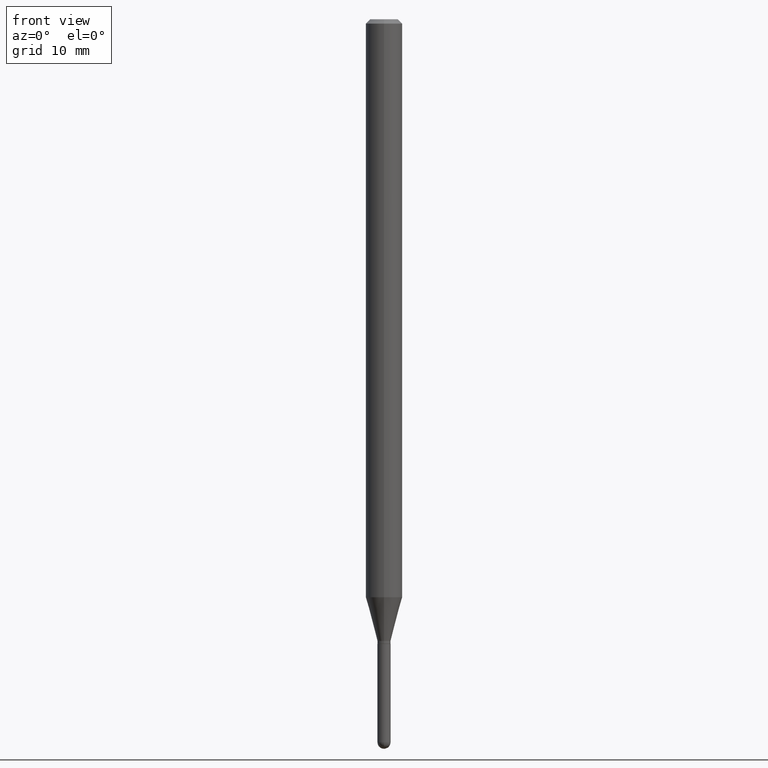
[diagram: clean part render]
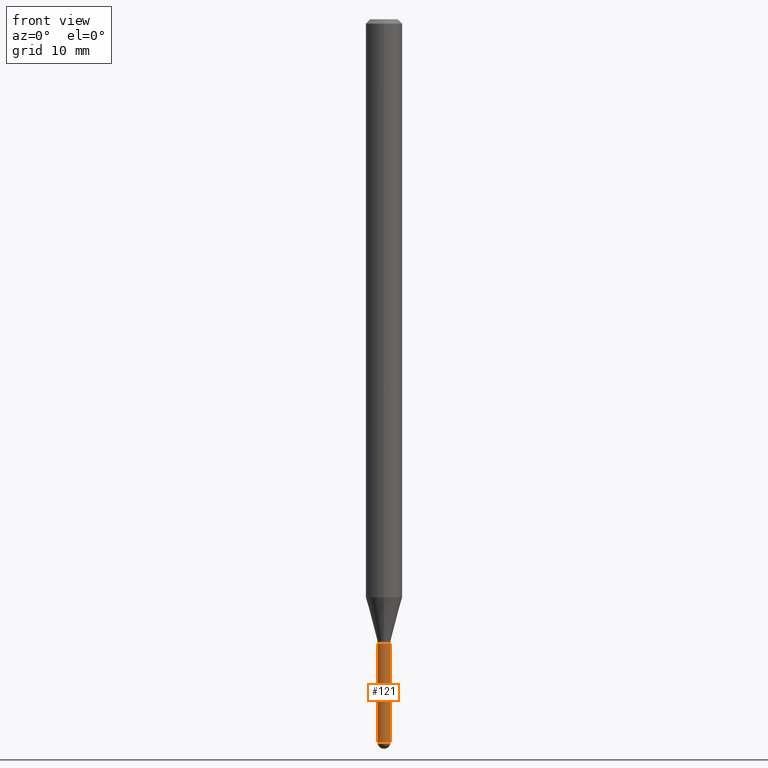
[diagram: same view with one face highlighted and labeled with its STEP entity id]
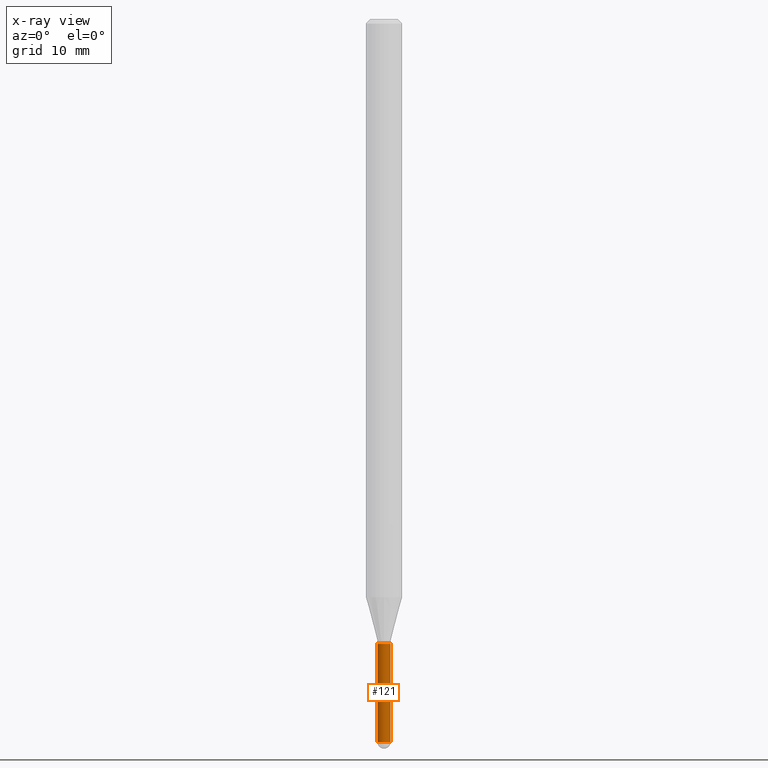
[diagram: x-ray of the same camera — body ghosted, the highlighted face saturated]
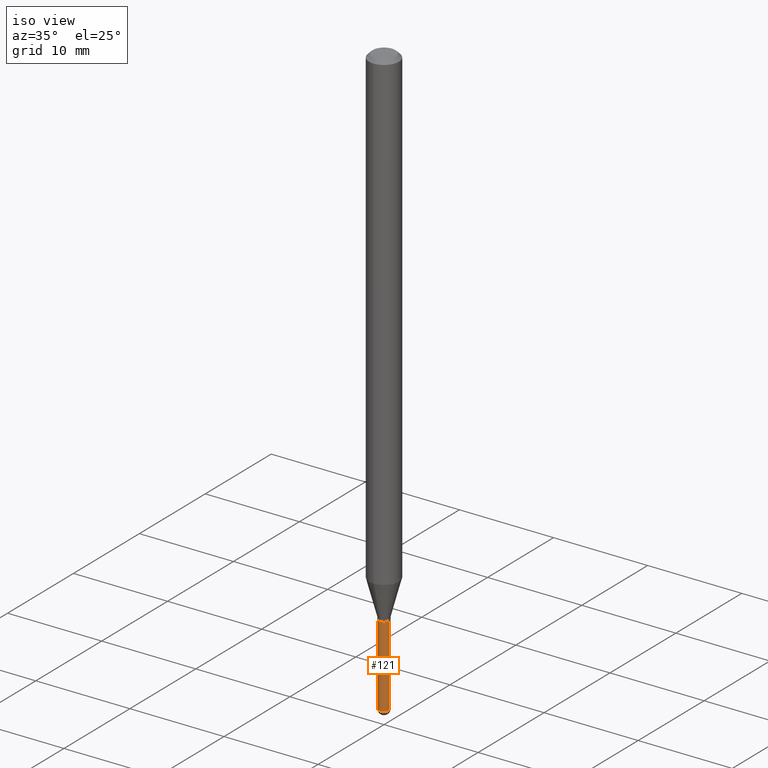
[diagram: same view with one face highlighted and labeled with its STEP entity id]
A machine part, front view. The second image highlights one B-rep face of the part: STEP entity #121.
The next image is the same camera in x-ray: the body ghosted, the highlighted face saturated — about 0% of this face is hidden behind the body in this view.
A second angle (iso view) of the same face is appended — the face is thin or edge-on in the first view.
In plain terms, the highlighted cylindrical surface (edge-blend (fillet) strip) has radius 0.5715 mm, axis along (-0, 0, 1).
Its self-contained STEP definition (entity closure, byte-faithful):
#34 = CARTESIAN_POINT ( 'NONE',  ( -0.02249999999999999917, -7.901085425508090322E-15, -2.140000000000000124 ) ) ;
#52 = AXIS2_PLACEMENT_3D ( 'NONE', #144, #499, #492 ) ;
#64 = DIRECTION ( 'NONE',  ( 1.000000000000000000, -6.982962677686269866E-15, 0.000000000000000000 ) ) ;
#69 = VERTEX_POINT ( 'NONE', #447 ) ;
#74 = VECTOR ( 'NONE', #414, 39.37007874015748143 ) ;
#121 = ADVANCED_FACE ( 'NONE', ( #381 ), #418, .T. ) ;
#128 = ORIENTED_EDGE ( 'NONE', *, *, #327, .F. ) ;
#142 = EDGE_CURVE ( 'NONE', #371, #143, #230, .T. ) ;
#143 = VERTEX_POINT ( 'NONE', #256 ) ;
#144 = CARTESIAN_POINT ( 'NONE',  ( 0.000000000000000000, 0.000000000000000000, 0.000000000000000000 ) ) ;
#147 = DIRECTION ( 'NONE',  ( -2.445468806185136877E-29, 3.491481338843145188E-15, 1.000000000000000000 ) ) ;
#150 = CIRCLE ( 'NONE', #376, 0.02249999999999999570 ) ;
#151 = LINE ( 'NONE', #196, #74 ) ;
#152 = DIRECTION ( 'NONE',  ( 1.000000000000000000, -6.982962677686269866E-15, 0.000000000000000000 ) ) ;
#156 = DIRECTION ( 'NONE',  ( -2.445468806185136597E-29, 3.491481338843145583E-15, 1.000000000000000000 ) ) ;
#157 = CARTESIAN_POINT ( 'NONE',  ( 5.233303245236192586E-29, -7.471770065124331886E-15, -2.140000000000000124 ) ) ;
#158 = EDGE_CURVE ( 'NONE', #397, #242, #151, .T. ) ;
#165 = ORIENTED_EDGE ( 'NONE', *, *, #158, .F. ) ;
#190 = CARTESIAN_POINT ( 'NONE',  ( -0.02249999999999999570, -7.901085425508090322E-15, -2.477500000000000036 ) ) ;
#193 = CIRCLE ( 'NONE', #479, 0.02249999999999999570 ) ;
#196 = CARTESIAN_POINT ( 'NONE',  ( -0.02249999999999999917, 1.598721155460225359E-16, -1.106760395307353780E-30 ) ) ;
#230 = LINE ( 'NONE', #308, #363 ) ;
#235 = DIRECTION ( 'NONE',  ( 1.000000000000000000, -6.982962677686269077E-15, 0.000000000000000000 ) ) ;
#242 = VERTEX_POINT ( 'NONE', #34 ) ;
#244 = DIRECTION ( 'NONE',  ( -2.445468806185136597E-29, 3.491481338843145583E-15, 1.000000000000000000 ) ) ;
#256 = CARTESIAN_POINT ( 'NONE',  ( 0.02249999999999999917, -7.628886725372273518E-15, -2.140000000000000124 ) ) ;
#292 = EDGE_LOOP ( 'NONE', ( #165, #333, #494, #486, #128 ) ) ;
#306 = CARTESIAN_POINT ( 'NONE',  ( 0.02249999999999999570, -8.218074201302054244E-15, -2.477500000000000036 ) ) ;
#308 = CARTESIAN_POINT ( 'NONE',  ( 0.02249999999999999917, -1.571166602479409911E-16, 1.097139774554085483E-30 ) ) ;
#309 = CARTESIAN_POINT ( 'NONE',  ( 6.058648967323676636E-29, -8.650145016983893338E-15, -2.477500000000000036 ) ) ;
#327 = EDGE_CURVE ( 'NONE', #242, #143, #427, .T. ) ;
#333 = ORIENTED_EDGE ( 'NONE', *, *, #394, .T. ) ;
#363 = VECTOR ( 'NONE', #147, 39.37007874015748143 ) ;
#370 = EDGE_CURVE ( 'NONE', #69, #371, #193, .T. ) ;
#371 = VERTEX_POINT ( 'NONE', #306 ) ;
#376 = AXIS2_PLACEMENT_3D ( 'NONE', #309, #156, #152 ) ;
#381 = FACE_OUTER_BOUND ( 'NONE', #292, .T. ) ;
#384 = CARTESIAN_POINT ( 'NONE',  ( 6.058648967323676636E-29, -8.650145016983893338E-15, -2.477500000000000036 ) ) ;
#394 = EDGE_CURVE ( 'NONE', #397, #69, #150, .T. ) ;
#397 = VERTEX_POINT ( 'NONE', #190 ) ;
#410 = AXIS2_PLACEMENT_3D ( 'NONE', #157, #244, #235 ) ;
#414 = DIRECTION ( 'NONE',  ( -2.445468806185136877E-29, 3.491481338843145188E-15, 1.000000000000000000 ) ) ;
#418 = CYLINDRICAL_SURFACE ( 'NONE', #52, 0.02249999999999999917 ) ;
#419 = DIRECTION ( 'NONE',  ( -2.445468806185136597E-29, 3.491481338843145583E-15, 1.000000000000000000 ) ) ;
#427 = CIRCLE ( 'NONE', #410, 0.02249999999999999917 ) ;
#447 = CARTESIAN_POINT ( 'NONE',  ( -1.598721155459611280E-16, -0.02250000000000853748, -2.477500000000000036 ) ) ;
#479 = AXIS2_PLACEMENT_3D ( 'NONE', #384, #419, #64 ) ;
#486 = ORIENTED_EDGE ( 'NONE', *, *, #142, .T. ) ;
#492 = DIRECTION ( 'NONE',  ( 1.000000000000000000, -6.982962677686266711E-15, 4.876176775795935793E-29 ) ) ;
#494 = ORIENTED_EDGE ( 'NONE', *, *, #370, .T. ) ;
#499 = DIRECTION ( 'NONE',  ( -2.445468806185136597E-29, 3.491481338843145583E-15, 1.000000000000000000 ) ) ;